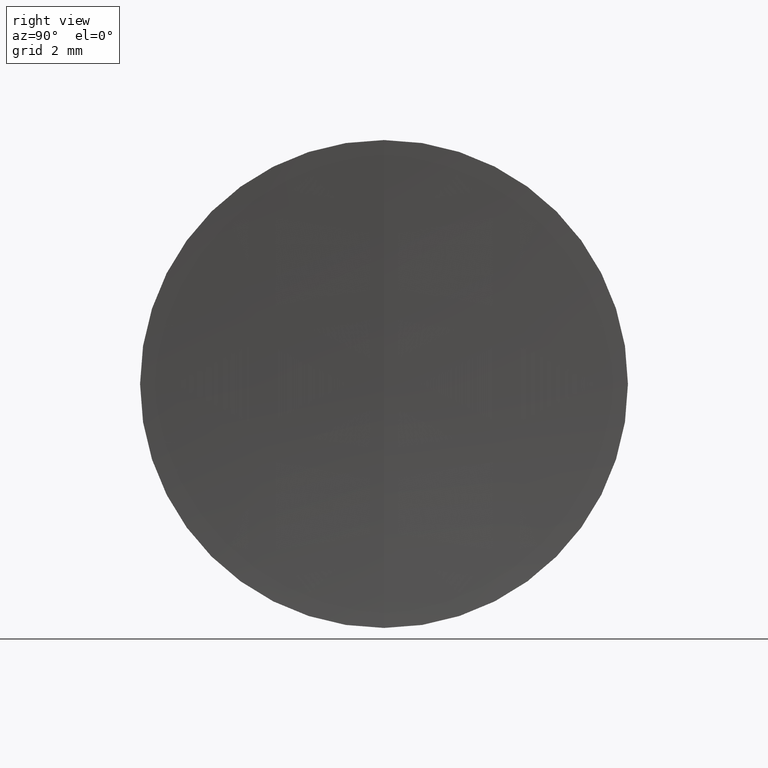
[diagram: clean part render]
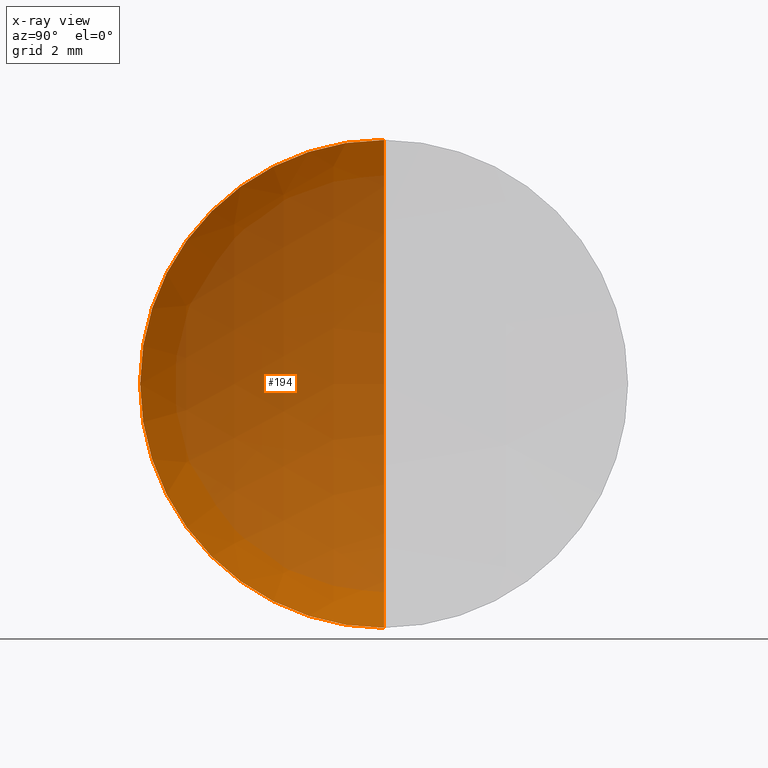
[diagram: x-ray — body ghosted, one internal face saturated and labeled with its STEP entity id]
A machine part, right view, then the same camera in x-ray: the body is ghosted and one INTERNAL B-rep face — a face not visible from any outside direction — is saturated and labeled: STEP entity #194.
In plain terms, the highlighted spherical surface has radius 14.3 mm.
Its self-contained STEP definition (entity closure, byte-faithful):
#11 = DIRECTION ( 'NONE',  ( 0.0000000000000000000, 0.0000000000000000000, 1.000000000000000000 ) ) ;
#18 = DIRECTION ( 'NONE',  ( 0.0000000000000000000, 0.0000000000000000000, 1.000000000000000000 ) ) ;
#23 = DIRECTION ( 'NONE',  ( -0.0000000000000000000, -1.000000000000000000, -0.0000000000000000000 ) ) ;
#70 = CARTESIAN_POINT ( 'NONE',  ( 232.8878128593976600, 0.0000000000000000000, -4.293070537659537300E-014 ) ) ;
#81 = CARTESIAN_POINT ( 'NONE',  ( 232.8878128593976600, 0.0000000000000000000, 6.349999999999999600 ) ) ;
#90 = ORIENTED_EDGE ( 'NONE', *, *, #273, .F. ) ;
#93 = CARTESIAN_POINT ( 'NONE',  ( 231.4005994415584600, 0.0000000000000000000, 1.751244922675847100E-015 ) ) ;
#109 = CIRCLE ( 'NONE', #182, 14.30000000000000600 ) ;
#111 = AXIS2_PLACEMENT_3D ( 'NONE', #190, #115, #11 ) ;
#115 = DIRECTION ( 'NONE',  ( -0.0000000000000000000, 1.000000000000000000, 0.0000000000000000000 ) ) ;
#146 = CARTESIAN_POINT ( 'NONE',  ( 232.8878128593976600, 7.776507174585744400E-016, -6.350000000000084900 ) ) ;
#161 = ORIENTED_EDGE ( 'NONE', *, *, #219, .F. ) ;
#170 = AXIS2_PLACEMENT_3D ( 'NONE', #70, #202, #18 ) ;
#182 = AXIS2_PLACEMENT_3D ( 'NONE', #187, #234, #316 ) ;
#187 = CARTESIAN_POINT ( 'NONE',  ( 245.7005994415584700, 0.0000000000000000000, -1.048684502899648100E-025 ) ) ;
#190 = CARTESIAN_POINT ( 'NONE',  ( 245.7005994415584700, 0.0000000000000000000, -1.048684502899648100E-025 ) ) ;
#194 = ADVANCED_FACE ( 'NONE', ( #281 ), #321, .F. ) ;
#202 = DIRECTION ( 'NONE',  ( -1.000000000000000000, -0.0000000000000000000, 1.836970198721029700E-016 ) ) ;
#203 = DIRECTION ( 'NONE',  ( 0.0000000000000000000, 0.0000000000000000000, -1.000000000000000000 ) ) ;
#219 = EDGE_CURVE ( 'NONE', #323, #311, #317, .T. ) ;
#226 = VERTEX_POINT ( 'NONE', #93 ) ;
#233 = EDGE_CURVE ( 'NONE', #323, #226, #336, .T. ) ;
#234 = DIRECTION ( 'NONE',  ( -2.249639673992786400E-032, -1.000000000000000000, -1.224646799147353200E-016 ) ) ;
#239 = AXIS2_PLACEMENT_3D ( 'NONE', #308, #23, #203 ) ;
#246 = EDGE_LOOP ( 'NONE', ( #90, #161, #333 ) ) ;
#273 = EDGE_CURVE ( 'NONE', #311, #226, #109, .T. ) ;
#281 = FACE_OUTER_BOUND ( 'NONE', #246, .T. ) ;
#308 = CARTESIAN_POINT ( 'NONE',  ( 245.7005994415584700, 0.0000000000000000000, -1.048684502899648100E-025 ) ) ;
#311 = VERTEX_POINT ( 'NONE', #81 ) ;
#316 = DIRECTION ( 'NONE',  ( 0.0000000000000000000, 1.224646799147353200E-016, -1.000000000000000000 ) ) ;
#317 = CIRCLE ( 'NONE', #170, 6.350000000000042300 ) ;
#321 = SPHERICAL_SURFACE ( 'NONE', #239, 14.30000000000000600 ) ;
#323 = VERTEX_POINT ( 'NONE', #146 ) ;
#333 = ORIENTED_EDGE ( 'NONE', *, *, #233, .T. ) ;
#336 = CIRCLE ( 'NONE', #111, 14.30000000000000600 ) ;